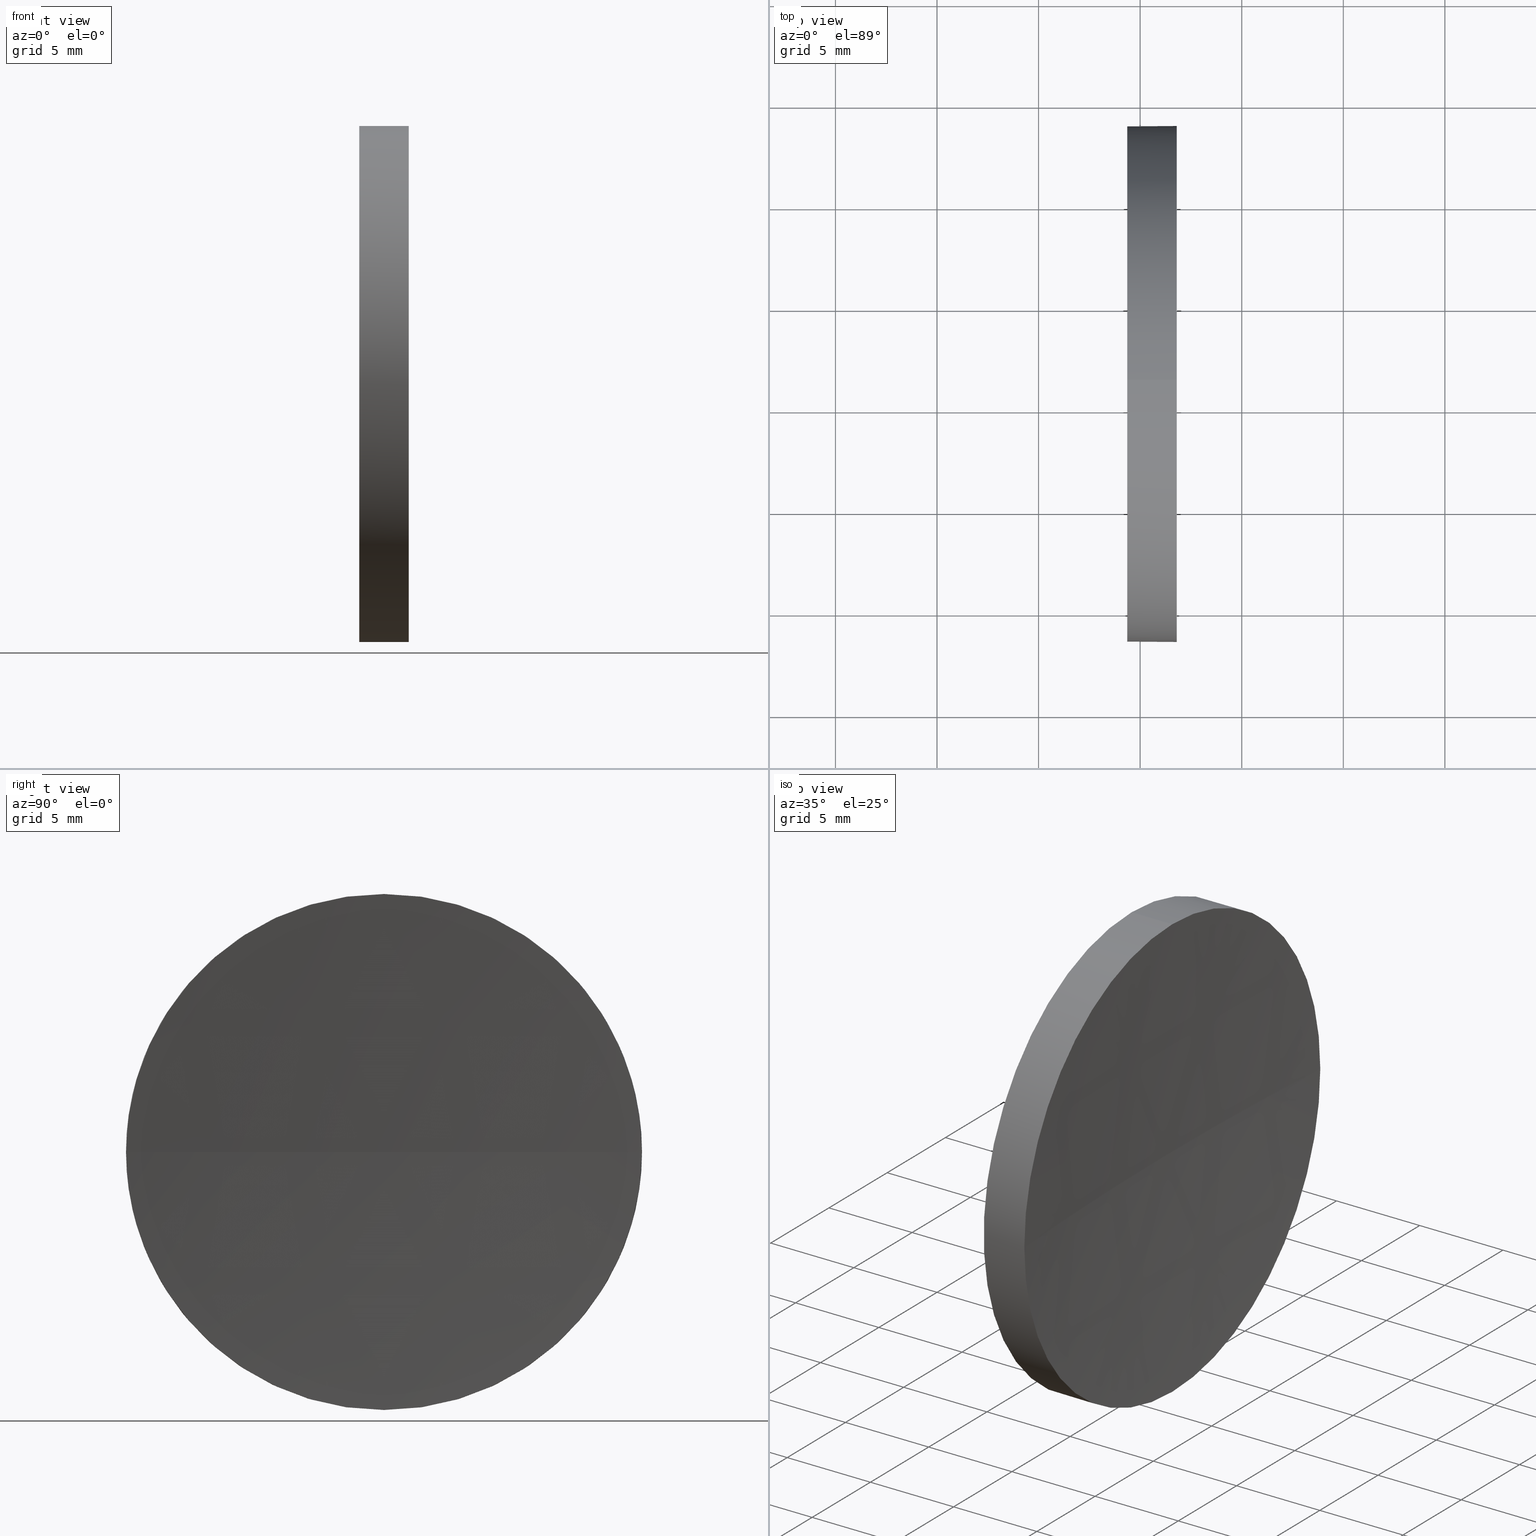
[diagram: canonical four-view strip — front | top / right | iso, engineering-drawing reading convention]
A machine part, canonical four-view strip (front | top / right | iso — engineering-drawing reading convention). The complete STEP part file that produces these views, byte-faithful:
ISO-10303-21;
HEADER;
FILE_DESCRIPTION (( 'STEP AP214' ),
    '1' );
FILE_NAME ('120272.STEP',
    '2019-06-25T03:37:53',
    ( '' ),
    ( '' ),
    'SwSTEP 2.0',
    'SolidWorks 2016',
    '' );
FILE_SCHEMA (( 'AUTOMOTIVE_DESIGN' ));
ENDSEC;

DATA;
#1 = DIRECTION ( 'NONE',  ( 1.000000000000000000, 0.0000000000000000000, 0.0000000000000000000 ) ) ;
#2 = CARTESIAN_POINT ( 'NONE',  ( 111.9552297575605700, 71.19398908659370300, 12.69999999999998200 ) ) ;
#3 =( LENGTH_UNIT ( ) NAMED_UNIT ( * ) SI_UNIT ( .MILLI., .METRE. ) );
#4 = PRODUCT_DEFINITION_FORMATION_WITH_SPECIFIED_SOURCE ( '�κ�', '', #159, .NOT_KNOWN. ) ;
#5 = APPLICATION_PROTOCOL_DEFINITION ( 'draft international standard', 'automotive_design', 1998, #95 ) ;
#6 = EDGE_LOOP ( 'NONE', ( #93, #28, #105, #166, #9 ) ) ;
#7 = SPHERICAL_SURFACE ( 'NONE', #47, 183.3899999999999900 ) ;
#8 = EDGE_CURVE ( 'NONE', #81, #180, #142, .T. ) ;
#9 = ORIENTED_EDGE ( 'NONE', *, *, #65, .T. ) ;
#10 = CARTESIAN_POINT ( 'NONE',  ( 304.7529307920347000, 71.19398908659368900, 0.0000000000000000000 ) ) ;
#11 = CARTESIAN_POINT ( 'NONE',  ( 111.9552297575605700, 71.19398908659370300, 0.0000000000000000000 ) ) ;
#12 = APPLICATION_CONTEXT ( 'automotive_design' ) ;
#13 =( NAMED_UNIT ( * ) PLANE_ANGLE_UNIT ( ) SI_UNIT ( $, .RADIAN. ) );
#14 = CARTESIAN_POINT ( 'NONE',  ( 119.3629307920347200, 71.19398908659370300, 0.0000000000000000000 ) ) ;
#15 = DIRECTION ( 'NONE',  ( -1.000000000000000000, -0.0000000000000000000, -0.0000000000000000000 ) ) ;
#16 = ADVANCED_FACE ( 'NONE', ( #20 ), #23, .F. ) ;
#17 = EDGE_CURVE ( 'NONE', #138, #64, #107, .T. ) ;
#18 = ADVANCED_FACE ( 'NONE', ( #179 ), #46, .T. ) ;
#19 = ORIENTED_EDGE ( 'NONE', *, *, #32, .F. ) ;
#20 = FACE_OUTER_BOUND ( 'NONE', #31, .T. ) ;
#21 = VERTEX_POINT ( 'NONE', #85 ) ;
#22 = CARTESIAN_POINT ( 'NONE',  ( 119.3629307920347200, 71.19398908659370300, -12.70000000000000100 ) ) ;
#23 = PLANE ( 'NONE',  #133 ) ;
#24 = SURFACE_STYLE_USAGE ( .BOTH. , #165 ) ;
#25 =( NAMED_UNIT ( * ) PLANE_ANGLE_UNIT ( ) SI_UNIT ( $, .RADIAN. ) );
#26 = EDGE_CURVE ( 'NONE', #153, #138, #168, .T. ) ;
#27 =( GEOMETRIC_REPRESENTATION_CONTEXT ( 3 ) GLOBAL_UNCERTAINTY_ASSIGNED_CONTEXT ( ( #45 ) ) GLOBAL_UNIT_ASSIGNED_CONTEXT ( ( #164, #25, #128 ) ) REPRESENTATION_CONTEXT ( 'NONE', 'WORKASPACE' ) );
#28 = ORIENTED_EDGE ( 'NONE', *, *, #136, .T. ) ;
#29 = CARTESIAN_POINT ( 'NONE',  ( 121.8032051841508400, 71.19398908659370300, 0.0000000000000000000 ) ) ;
#30 = FILL_AREA_STYLE_COLOUR ( '', #109 ) ;
#31 = EDGE_LOOP ( 'NONE', ( #123, #71 ) ) ;
#32 = EDGE_CURVE ( 'NONE', #64, #120, #124, .T. ) ;
#33 = FACE_OUTER_BOUND ( 'NONE', #173, .T. ) ;
#34 = CARTESIAN_POINT ( 'NONE',  ( 121.8032051841508400, 71.19398908659370300, 0.0000000000000000000 ) ) ;
#35 = ORIENTED_EDGE ( 'NONE', *, *, #26, .F. ) ;
#36 = CARTESIAN_POINT ( 'NONE',  ( 304.7529307920347000, 71.19398908659368900, 0.0000000000000000000 ) ) ;
#37 = AXIS2_PLACEMENT_3D ( 'NONE', #14, #118, #106 ) ;
#38 =( NAMED_UNIT ( * ) SI_UNIT ( $, .STERADIAN. ) SOLID_ANGLE_UNIT ( ) );
#39 = SPHERICAL_SURFACE ( 'NONE', #77, 183.3899999999999900 ) ;
#40 = CARTESIAN_POINT ( 'NONE',  ( 119.3629307920347200, 71.19398908659370300, 12.70000000000000300 ) ) ;
#41 = DIRECTION ( 'NONE',  ( 0.0000000000000000000, 0.0000000000000000000, 1.000000000000000000 ) ) ;
#42 = PRESENTATION_STYLE_ASSIGNMENT (( #24 ) ) ;
#43 = CIRCLE ( 'NONE', #100, 183.3899999999999900 ) ;
#44 = AXIS2_PLACEMENT_3D ( 'NONE', #156, #87, #175 ) ;
#45 = UNCERTAINTY_MEASURE_WITH_UNIT (LENGTH_MEASURE( 1.000000000000000100E-005 ), #164, 'distance_accuracy_value', 'NONE');
#46 = CYLINDRICAL_SURFACE ( 'NONE', #44, 12.69999999999998200 ) ;
#47 = AXIS2_PLACEMENT_3D ( 'NONE', #130, #56, #94 ) ;
#48 = PRODUCT_RELATED_PRODUCT_CATEGORY ( 'part', '', ( #159 ) ) ;
#49 = SURFACE_STYLE_FILL_AREA ( #113 ) ;
#50 = DIRECTION ( 'NONE',  ( 0.0000000000000000000, 0.0000000000000000000, 1.000000000000000000 ) ) ;
#51 = DIRECTION ( 'NONE',  ( -1.000000000000000000, -0.0000000000000000000, -0.0000000000000000000 ) ) ;
#52 = CARTESIAN_POINT ( 'NONE',  ( 121.8032051841508400, 71.19398908659370300, 0.0000000000000000000 ) ) ;
#53 = DIRECTION ( 'NONE',  ( 1.000000000000000000, 0.0000000000000000000, 0.0000000000000000000 ) ) ;
#54 = APPLICATION_PROTOCOL_DEFINITION ( 'draft international standard', 'automotive_design', 1998, #12 ) ;
#55 = AXIS2_PLACEMENT_3D ( 'NONE', #10, #155, #185 ) ;
#56 = DIRECTION ( 'NONE',  ( 0.0000000000000000000, 0.0000000000000000000, -1.000000000000000000 ) ) ;
#57 = ORIENTED_EDGE ( 'NONE', *, *, #116, .T. ) ;
#58 = CARTESIAN_POINT ( 'NONE',  ( 111.9552297575605700, 71.19398908659370300, -12.69999999999998200 ) ) ;
#59 = EDGE_LOOP ( 'NONE', ( #19, #186, #35, #84 ) ) ;
#60 = CARTESIAN_POINT ( 'NONE',  ( 121.8032051841508300, 83.89398908659370600, 0.0000000000000000000 ) ) ;
#61 = STYLED_ITEM ( 'NONE', ( #42 ), #154 ) ;
#62 = PRODUCT_DEFINITION_CONTEXT ( 'detailed design', #95, 'design' ) ;
#63 = ORIENTED_EDGE ( 'NONE', *, *, #17, .T. ) ;
#64 = VERTEX_POINT ( 'NONE', #111 ) ;
#65 = EDGE_CURVE ( 'NONE', #21, #153, #126, .T. ) ;
#66 =( GEOMETRIC_REPRESENTATION_CONTEXT ( 3 ) GLOBAL_UNCERTAINTY_ASSIGNED_CONTEXT ( ( #80 ) ) GLOBAL_UNIT_ASSIGNED_CONTEXT ( ( #3, #161, #145 ) ) REPRESENTATION_CONTEXT ( 'NONE', 'WORKASPACE' ) );
#67 = DIRECTION ( 'NONE',  ( 0.0000000000000000000, 0.0000000000000000000, -1.000000000000000000 ) ) ;
#68 = DIRECTION ( 'NONE',  ( -1.000000000000000000, -0.0000000000000000000, -0.0000000000000000000 ) ) ;
#69 = DIRECTION ( 'NONE',  ( 1.000000000000000000, 0.0000000000000000000, 0.0000000000000000000 ) ) ;
#70 = FILL_AREA_STYLE ('',( #30 ) ) ;
#71 = ORIENTED_EDGE ( 'NONE', *, *, #8, .T. ) ;
#72 = FILL_AREA_STYLE_COLOUR ( '', #83 ) ;
#73 = DIRECTION ( 'NONE',  ( 0.0000000000000000000, 0.0000000000000000000, 1.000000000000000000 ) ) ;
#74 = CARTESIAN_POINT ( 'NONE',  ( 121.3629307920346900, 71.19398908659370300, 0.0000000000000000000 ) ) ;
#75 = ORIENTED_EDGE ( 'NONE', *, *, #76, .F. ) ;
#76 = EDGE_CURVE ( 'NONE', #153, #120, #43, .T. ) ;
#77 = AXIS2_PLACEMENT_3D ( 'NONE', #147, #119, #92 ) ;
#78 = FACE_OUTER_BOUND ( 'NONE', #134, .T. ) ;
#79 = PRESENTATION_STYLE_ASSIGNMENT (( #114 ) ) ;
#80 = UNCERTAINTY_MEASURE_WITH_UNIT (LENGTH_MEASURE( 1.000000000000000100E-005 ), #3, 'distance_accuracy_value', 'NONE');
#81 = VERTEX_POINT ( 'NONE', #22 ) ;
#82 = AXIS2_PLACEMENT_3D ( 'NONE', #29, #131, #104 ) ;
#83 = COLOUR_RGB ( '',1.000000000000000000, 1.000000000000000000, 1.000000000000000000 ) ;
#84 = ORIENTED_EDGE ( 'NONE', *, *, #76, .T. ) ;
#85 = CARTESIAN_POINT ( 'NONE',  ( 121.8032051841508400, 71.19398908659370300, 12.69999999999996200 ) ) ;
#86 = CIRCLE ( 'NONE', #82, 12.69999999999996200 ) ;
#87 = DIRECTION ( 'NONE',  ( -1.000000000000000000, -0.0000000000000000000, -0.0000000000000000000 ) ) ;
#88 =( LENGTH_UNIT ( ) NAMED_UNIT ( * ) SI_UNIT ( .MILLI., .METRE. ) );
#89 = DIRECTION ( 'NONE',  ( 0.0000000000000000000, 0.0000000000000000000, 1.000000000000000000 ) ) ;
#90 = PRESENTATION_LAYER_ASSIGNMENT (  '', '', ( #61 ) ) ;
#91 = VECTOR ( 'NONE', #141, 1000.000000000000000 ) ;
#92 = DIRECTION ( 'NONE',  ( 0.0000000000000000000, 1.000000000000000000, 0.0000000000000000000 ) ) ;
#93 = ORIENTED_EDGE ( 'NONE', *, *, #26, .T. ) ;
#94 = DIRECTION ( 'NONE',  ( 0.0000000000000000000, 1.000000000000000000, 0.0000000000000000000 ) ) ;
#95 = APPLICATION_CONTEXT ( 'automotive_design' ) ;
#96 = AXIS2_PLACEMENT_3D ( 'NONE', #11, #15, #41 ) ;
#97 = MECHANICAL_DESIGN_GEOMETRIC_PRESENTATION_REPRESENTATION (  '', ( #182 ), #27 ) ;
#98 = FACE_OUTER_BOUND ( 'NONE', #59, .T. ) ;
#99 = ORIENTED_EDGE ( 'NONE', *, *, #8, .F. ) ;
#100 = AXIS2_PLACEMENT_3D ( 'NONE', #36, #73, #53 ) ;
#101 = ORIENTED_EDGE ( 'NONE', *, *, #116, .F. ) ;
#102 = MECHANICAL_DESIGN_GEOMETRIC_PRESENTATION_REPRESENTATION (  '', ( #61 ), #122 ) ;
#103 = AXIS2_PLACEMENT_3D ( 'NONE', #178, #89, #1 ) ;
#104 = DIRECTION ( 'NONE',  ( 0.0000000000000000000, 0.0000000000000000000, 1.000000000000000000 ) ) ;
#105 = ORIENTED_EDGE ( 'NONE', *, *, #108, .F. ) ;
#106 = DIRECTION ( 'NONE',  ( 0.0000000000000000000, 0.0000000000000000000, 1.000000000000000000 ) ) ;
#107 = CIRCLE ( 'NONE', #144, 12.69999999999996200 ) ;
#108 = EDGE_CURVE ( 'NONE', #180, #81, #129, .T. ) ;
#109 = COLOUR_RGB ( '',1.000000000000000000, 1.000000000000000000, 1.000000000000000000 ) ;
#110 = ORIENTED_EDGE ( 'NONE', *, *, #136, .F. ) ;
#111 = CARTESIAN_POINT ( 'NONE',  ( 121.8032051841508300, 58.49398908659368600, -1.555301434917138600E-015 ) ) ;
#112 = ORIENTED_EDGE ( 'NONE', *, *, #65, .F. ) ;
#113 = FILL_AREA_STYLE ('',( #72 ) ) ;
#114 = SURFACE_STYLE_USAGE ( .BOTH. , #115 ) ;
#115 = SURFACE_SIDE_STYLE ('',( #117 ) ) ;
#116 = EDGE_CURVE ( 'NONE', #64, #21, #86, .T. ) ;
#117 = SURFACE_STYLE_FILL_AREA ( #70 ) ;
#118 = DIRECTION ( 'NONE',  ( -1.000000000000000000, -0.0000000000000000000, -0.0000000000000000000 ) ) ;
#119 = DIRECTION ( 'NONE',  ( 0.0000000000000000000, 0.0000000000000000000, -1.000000000000000000 ) ) ;
#120 = VERTEX_POINT ( 'NONE', #74 ) ;
#121 = LINE ( 'NONE', #2, #91 ) ;
#122 =( GEOMETRIC_REPRESENTATION_CONTEXT ( 3 ) GLOBAL_UNCERTAINTY_ASSIGNED_CONTEXT ( ( #176 ) ) GLOBAL_UNIT_ASSIGNED_CONTEXT ( ( #88, #13, #38 ) ) REPRESENTATION_CONTEXT ( 'NONE', 'WORKASPACE' ) );
#123 = ORIENTED_EDGE ( 'NONE', *, *, #108, .T. ) ;
#124 = CIRCLE ( 'NONE', #55, 183.3899999999999900 ) ;
#125 = EDGE_CURVE ( 'NONE', #21, #180, #121, .T. ) ;
#126 = CIRCLE ( 'NONE', #170, 12.69999999999996200 ) ;
#127 = DIRECTION ( 'NONE',  ( 0.0000000000000000000, 0.0000000000000000000, 1.000000000000000000 ) ) ;
#128 =( NAMED_UNIT ( * ) SI_UNIT ( $, .STERADIAN. ) SOLID_ANGLE_UNIT ( ) );
#129 = CIRCLE ( 'NONE', #37, 12.70000000000000300 ) ;
#130 = CARTESIAN_POINT ( 'NONE',  ( 304.7529307920347000, 71.19398908659368900, 0.0000000000000000000 ) ) ;
#131 = DIRECTION ( 'NONE',  ( -1.000000000000000000, -0.0000000000000000000, -0.0000000000000000000 ) ) ;
#132 = ADVANCED_FACE ( 'NONE', ( #98 ), #7, .F. ) ;
#133 = AXIS2_PLACEMENT_3D ( 'NONE', #140, #69, #67 ) ;
#134 = EDGE_LOOP ( 'NONE', ( #110, #63, #57, #135, #99 ) ) ;
#135 = ORIENTED_EDGE ( 'NONE', *, *, #125, .T. ) ;
#136 = EDGE_CURVE ( 'NONE', #138, #81, #160, .T. ) ;
#137 = PRESENTATION_LAYER_ASSIGNMENT (  '', '', ( #182 ) ) ;
#138 = VERTEX_POINT ( 'NONE', #143 ) ;
#139 = CARTESIAN_POINT ( 'NONE',  ( 119.3629307920347200, 71.19398908659370300, 0.0000000000000000000 ) ) ;
#140 = CARTESIAN_POINT ( 'NONE',  ( 119.3629307920347200, 71.19398908659370300, 0.0000000000000000000 ) ) ;
#141 = DIRECTION ( 'NONE',  ( -1.000000000000000000, -0.0000000000000000000, -0.0000000000000000000 ) ) ;
#142 = CIRCLE ( 'NONE', #151, 12.70000000000000300 ) ;
#143 = CARTESIAN_POINT ( 'NONE',  ( 121.8032051841508400, 71.19398908659370300, -12.69999999999996200 ) ) ;
#144 = AXIS2_PLACEMENT_3D ( 'NONE', #34, #68, #127 ) ;
#145 =( NAMED_UNIT ( * ) SI_UNIT ( $, .STERADIAN. ) SOLID_ANGLE_UNIT ( ) );
#146 = SHAPE_DEFINITION_REPRESENTATION ( #171, #148 ) ;
#147 = CARTESIAN_POINT ( 'NONE',  ( 304.7529307920347000, 71.19398908659368900, 0.0000000000000000000 ) ) ;
#148 = ADVANCED_BREP_SHAPE_REPRESENTATION ( '120272', ( #154, #103 ), #66 ) ;
#149 = ORIENTED_EDGE ( 'NONE', *, *, #32, .T. ) ;
#150 = ADVANCED_FACE ( 'NONE', ( #33 ), #39, .F. ) ;
#151 = AXIS2_PLACEMENT_3D ( 'NONE', #139, #157, #177 ) ;
#152 = ADVANCED_FACE ( 'NONE', ( #78 ), #184, .T. ) ;
#153 = VERTEX_POINT ( 'NONE', #60 ) ;
#154 = MANIFOLD_SOLID_BREP ( '��ת1', #183 ) ;
#155 = DIRECTION ( 'NONE',  ( 0.0000000000000000000, 1.224646799147353200E-016, -1.000000000000000000 ) ) ;
#156 = CARTESIAN_POINT ( 'NONE',  ( 111.9552297575605700, 71.19398908659370300, 0.0000000000000000000 ) ) ;
#157 = DIRECTION ( 'NONE',  ( -1.000000000000000000, -0.0000000000000000000, -0.0000000000000000000 ) ) ;
#158 = DIRECTION ( 'NONE',  ( -1.000000000000000000, -0.0000000000000000000, -0.0000000000000000000 ) ) ;
#159 = PRODUCT ( '120272', '120272', '', ( #167 ) ) ;
#160 = LINE ( 'NONE', #58, #169 ) ;
#161 =( NAMED_UNIT ( * ) PLANE_ANGLE_UNIT ( ) SI_UNIT ( $, .RADIAN. ) );
#162 = AXIS2_PLACEMENT_3D ( 'NONE', #174, #51, #50 ) ;
#163 = PRODUCT_DEFINITION ( 'δ֪', '', #4, #62 ) ;
#164 =( LENGTH_UNIT ( ) NAMED_UNIT ( * ) SI_UNIT ( .MILLI., .METRE. ) );
#165 = SURFACE_SIDE_STYLE ('',( #49 ) ) ;
#166 = ORIENTED_EDGE ( 'NONE', *, *, #125, .F. ) ;
#167 = PRODUCT_CONTEXT ( 'NONE', #12, 'mechanical' ) ;
#168 = CIRCLE ( 'NONE', #162, 12.69999999999996200 ) ;
#169 = VECTOR ( 'NONE', #181, 1000.000000000000000 ) ;
#170 = AXIS2_PLACEMENT_3D ( 'NONE', #52, #158, #172 ) ;
#171 = PRODUCT_DEFINITION_SHAPE ( 'NONE', 'NONE',  #163 ) ;
#172 = DIRECTION ( 'NONE',  ( 0.0000000000000000000, 0.0000000000000000000, 1.000000000000000000 ) ) ;
#173 = EDGE_LOOP ( 'NONE', ( #101, #149, #75, #112 ) ) ;
#174 = CARTESIAN_POINT ( 'NONE',  ( 121.8032051841508400, 71.19398908659370300, 0.0000000000000000000 ) ) ;
#175 = DIRECTION ( 'NONE',  ( 0.0000000000000000000, 0.0000000000000000000, 1.000000000000000000 ) ) ;
#176 = UNCERTAINTY_MEASURE_WITH_UNIT (LENGTH_MEASURE( 1.000000000000000100E-005 ), #88, 'distance_accuracy_value', 'NONE');
#177 = DIRECTION ( 'NONE',  ( 0.0000000000000000000, 0.0000000000000000000, 1.000000000000000000 ) ) ;
#178 = CARTESIAN_POINT ( 'NONE',  ( 0.0000000000000000000, 0.0000000000000000000, 0.0000000000000000000 ) ) ;
#179 = FACE_OUTER_BOUND ( 'NONE', #6, .T. ) ;
#180 = VERTEX_POINT ( 'NONE', #40 ) ;
#181 = DIRECTION ( 'NONE',  ( -1.000000000000000000, -0.0000000000000000000, -0.0000000000000000000 ) ) ;
#182 = STYLED_ITEM ( 'NONE', ( #79 ), #148 ) ;
#183 = CLOSED_SHELL ( 'NONE', ( #18, #150, #132, #152, #16 ) ) ;
#184 = CYLINDRICAL_SURFACE ( 'NONE', #96, 12.69999999999998200 ) ;
#185 = DIRECTION ( 'NONE',  ( 0.0000000000000000000, 1.000000000000000000, 1.224646799147353200E-016 ) ) ;
#186 = ORIENTED_EDGE ( 'NONE', *, *, #17, .F. ) ;
ENDSEC;
END-ISO-10303-21;
